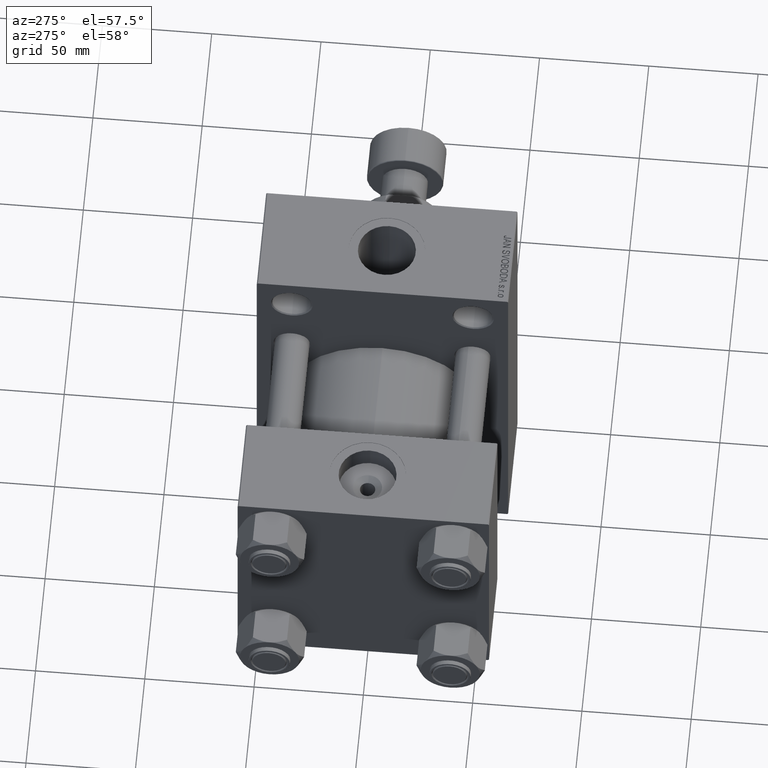
[diagram: clean part render]
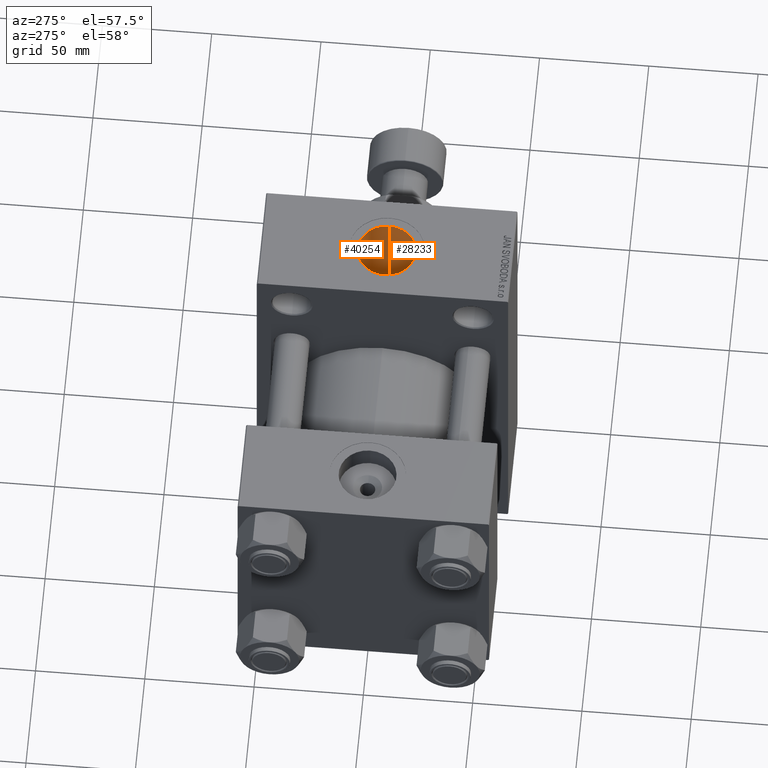
[diagram: same view with one multi-face feature highlighted, each face labeled with its STEP entity id]
A machine part, auxiliary view. The highlighted faces form ONE feature: a constant-radius fillet chain: 2 tangent blend faces with common blend radius 13.22 mm. The faces share edges in the B-rep.
Their STEP definitions:
[1] entity #40254 (Cylinder):
#223 = ORIENTED_EDGE ( 'NONE', *, *, #40604, .F. ) ;
#615 = DIRECTION ( 'NONE',  ( 0.000000000000000000, 0.000000000000000000, -1.000000000000000000 ) ) ;
#954 = CARTESIAN_POINT ( 'NONE',  ( 109.7799999999999869, 3.735152335644797090E-15, 30.50000000000000000 ) ) ;
#1221 = VERTEX_POINT ( 'NONE', #22993 ) ;
#1225 = EDGE_LOOP ( 'NONE', ( #223, #19825, #43987, #13079, #8320, #28081 ) ) ;
#1589 = CARTESIAN_POINT ( 'NONE',  ( 109.7799999999999869, -1.086087741481131350E-14, 89.79999999999998295 ) ) ;
#1674 = CARTESIAN_POINT ( 'NONE',  ( 123.7777193278499652, 13.20633922326214638, 27.49264203546941232 ) ) ;
#1803 = CARTESIAN_POINT ( 'NONE',  ( 135.8962416663181898, 3.003490287928880953, 35.88217189229079906 ) ) ;
#2040 = AXIS2_PLACEMENT_3D ( 'NONE', #14622, #7086, #29210 ) ;
#2893 = EDGE_CURVE ( 'NONE', #24180, #39770, #23407, .T. ) ;
#3854 = CARTESIAN_POINT ( 'NONE',  ( 109.7799999999999869, 3.735152335644797090E-15, 30.50000000000000000 ) ) ;
#3912 = CYLINDRICAL_SURFACE ( 'NONE', #2040, 13.22000000000000952 ) ;
#4713 = CARTESIAN_POINT ( 'NONE',  ( 125.7400000000000233, 12.93293470176046078, 33.59671412504503252 ) ) ;
#4833 = CARTESIAN_POINT ( 'NONE',  ( 109.8074965746004779, 0.9872482238805229127, 30.48805017778671100 ) ) ;
#4969 = CARTESIAN_POINT ( 'NONE',  ( 126.4867003901545246, 12.77473711426743108, 33.65761171941715446 ) ) ;
#5319 = CARTESIAN_POINT ( 'NONE',  ( 125.7400000000000233, 12.93293470176046078, 27.62225914004863014 ) ) ;
#5337 = DIRECTION ( 'NONE',  ( 1.000000000000000000, 0.000000000000000000, 0.000000000000000000 ) ) ;
#5454 = CARTESIAN_POINT ( 'NONE',  ( 136.2199999999999989, 0.3819698288429408950, 36.00000000000000000 ) ) ;
#7086 = DIRECTION ( 'NONE',  ( 0.000000000000000000, 0.000000000000000000, -1.000000000000000000 ) ) ;
#7505 = DIRECTION ( 'NONE',  ( 0.000000000000000000, 0.000000000000000000, -1.000000000000000000 ) ) ;
#7562 = FACE_OUTER_BOUND ( 'NONE', #1225, .T. ) ;
#8320 = ORIENTED_EDGE ( 'NONE', *, *, #2893, .F. ) ;
#8391 = CARTESIAN_POINT ( 'NONE',  ( 136.1379817546421407, 1.518265865167177875, 35.96994912351961204 ) ) ;
#8501 = CARTESIAN_POINT ( 'NONE',  ( 118.8969839307878829, 12.60537237624625462, 27.77446624569848410 ) ) ;
#8622 = CARTESIAN_POINT ( 'NONE',  ( 127.2060821151613510, 12.55531642788235125, 33.74093801992368924 ) ) ;
#8722 = CARTESIAN_POINT ( 'NONE',  ( 116.2405905081905644, 11.37158902866329768, 28.30223178644141058 ) ) ;
#8846 = EDGE_CURVE ( 'NONE', #33221, #39770, #47764, .T. ) ;
#8854 = CARTESIAN_POINT ( 'NONE',  ( 136.2033327349465992, 0.7640029534827996738, 35.99386990409604437 ) ) ;
#12150 = CARTESIAN_POINT ( 'NONE',  ( 114.2896176093950373, 9.956384615881498590, 28.83096279477899770 ) ) ;
#12282 = CARTESIAN_POINT ( 'NONE',  ( 136.0893087182808188, 1.892035420910296750, 35.95216273564660980 ) ) ;
#12615 = CARTESIAN_POINT ( 'NONE',  ( 110.0034013176459666, 2.469744289827827011, 30.40367189608674536 ) ) ;
#12749 = CARTESIAN_POINT ( 'NONE',  ( 132.7718099334104522, 8.911727539146795607, 34.88062444271565710 ) ) ;
#13001 = CARTESIAN_POINT ( 'NONE',  ( 132.2544909056830420, 9.447833359205608517, 34.73924717178599764 ) ) ;
#13079 = ORIENTED_EDGE ( 'NONE', *, *, #8846, .T. ) ;
#14348 = CIRCLE ( 'NONE', #43922, 13.22000000000000952 ) ;
#14436 = CARTESIAN_POINT ( 'NONE',  ( 136.2199999999999989, -9.241894346338509984E-15, 89.79999999999998295 ) ) ;
#14622 = CARTESIAN_POINT ( 'NONE',  ( 123.0000000000000000, -1.086087741481131350E-14, 112.7999999999999829 ) ) ;
#15793 = CARTESIAN_POINT ( 'NONE',  ( 112.9260598174467134, 8.574286465039138605, 29.27263374885120228 ) ) ;
#15890 = DIRECTION ( 'NONE',  ( 0.000000000000000000, 0.000000000000000000, -1.000000000000000000 ) ) ;
#16031 = CARTESIAN_POINT ( 'NONE',  ( 111.5110741800254459, 6.613878971456284006, 29.78798023624083058 ) ) ;
#16513 = CARTESIAN_POINT ( 'NONE',  ( 125.2536187678447703, 13.03598049970484496, 27.57401237756085521 ) ) ;
#16639 = CARTESIAN_POINT ( 'NONE',  ( 125.7400000000000233, 12.93293470176046078, 27.62225914004863014 ) ) ;
#19664 = CARTESIAN_POINT ( 'NONE',  ( 120.3256342958763838, 12.95594869095345558, 27.61177267963252646 ) ) ;
#19825 = ORIENTED_EDGE ( 'NONE', *, *, #36864, .F. ) ;
#19909 = CARTESIAN_POINT ( 'NONE',  ( 113.2493793498786516, 8.940352169284501826, 29.16250894268882021 ) ) ;
#22993 = CARTESIAN_POINT ( 'NONE',  ( 136.2199999999999989, 4.408731805096607676E-15, 36.00000000000000000 ) ) ;
#23253 = VECTOR ( 'NONE', #15890, 1000.000000000000000 ) ;
#23311 = CARTESIAN_POINT ( 'NONE',  ( 110.3594029954052047, 3.901785162874680690, 30.25300952143917144 ) ) ;
#23407 = LINE ( 'NONE', #23639, #23253 ) ;
#23639 = CARTESIAN_POINT ( 'NONE',  ( 125.7400000000000233, 12.93293470176046078, 112.7999999999999829 ) ) ;
#23788 = CARTESIAN_POINT ( 'NONE',  ( 117.9827127633823380, 12.27015841204415914, 27.92701712990832164 ) ) ;
#24180 = VERTEX_POINT ( 'NONE', #4713 ) ;
#24278 = CARTESIAN_POINT ( 'NONE',  ( 110.6830193899776589, 4.827070409900218628, 30.11922814116230285 ) ) ;
#24573 = VECTOR ( 'NONE', #7505, 1000.000000000000000 ) ;
#25001 = CARTESIAN_POINT ( 'NONE',  ( 109.7799999999999869, -1.086087741481131350E-14, 112.7999999999999829 ) ) ;
#26753 = CARTESIAN_POINT ( 'NONE',  ( 123.0000000000000000, -1.086087741481131350E-14, 89.79999999999998295 ) ) ;
#26869 = CARTESIAN_POINT ( 'NONE',  ( 128.5945103277782380, 12.00118958920801404, 33.94198458417640296 ) ) ;
#26979 = CARTESIAN_POINT ( 'NONE',  ( 115.0371891369870241, 10.56380609296691375, 28.61398279029830860 ) ) ;
#27106 = CARTESIAN_POINT ( 'NONE',  ( 134.8678405391319188, 5.836387716606536102, 35.52542343625399468 ) ) ;
#27334 = CARTESIAN_POINT ( 'NONE',  ( 134.6983450057127527, 6.168928695871315426, 35.46904263421720316 ) ) ;
#27579 = CARTESIAN_POINT ( 'NONE',  ( 131.1482271659914716, 10.43671964436603261, 34.45770319535727566 ) ) ;
#28081 = ORIENTED_EDGE ( 'NONE', *, *, #36277, .T. ) ;
#29210 = DIRECTION ( 'NONE',  ( -1.000000000000000000, 0.000000000000000000, 0.000000000000000000 ) ) ;
#29468 = VERTEX_POINT ( 'NONE', #14436 ) ;
#30749 = CARTESIAN_POINT ( 'NONE',  ( 135.3223465543050565, 4.803346231252598741, 35.67993160896550364 ) ) ;
#30859 = CARTESIAN_POINT ( 'NONE',  ( 115.4271501200176715, 10.84687044312922666, 28.50745100355763029 ) ) ;
#31101 = CARTESIAN_POINT ( 'NONE',  ( 122.2979727381281947, 13.21057355757992013, 27.49055875873991184 ) ) ;
#31335 = CARTESIAN_POINT ( 'NONE',  ( 116.6661582615323596, 11.61426874580967805, 28.20310319464547177 ) ) ;
#31588 = CARTESIAN_POINT ( 'NONE',  ( 109.7799999999999443, 0.4930897905089558497, 30.49999999999999645 ) ) ;
#33042 = LINE ( 'NONE', #37176, #24573 ) ;
#33221 = VERTEX_POINT ( 'NONE', #3854 ) ;
#34275 = CARTESIAN_POINT ( 'NONE',  ( 112.0260244560768541, 7.434870375886672100, 29.59044782374041205 ) ) ;
#34513 = CARTESIAN_POINT ( 'NONE',  ( 123.2851615108020837, 13.22613998524883350, 27.48307289366608330 ) ) ;
#34527 = DIRECTION ( 'NONE',  ( -0.000000000000000000, -0.000000000000000000, -1.000000000000000000 ) ) ;
#34754 = CARTESIAN_POINT ( 'NONE',  ( 109.9192796940201902, 1.977766912824124645, 30.43984725220107990 ) ) ;
#35189 = VERTEX_POINT ( 'NONE', #1589 ) ;
#36277 = EDGE_CURVE ( 'NONE', #24180, #1221, #45938, .T. ) ;
#36864 = EDGE_CURVE ( 'NONE', #35189, #29468, #14348, .T. ) ;
#37176 = CARTESIAN_POINT ( 'NONE',  ( 136.2199999999999989, -9.241894346338509984E-15, 112.7999999999999829 ) ) ;
#38066 = CARTESIAN_POINT ( 'NONE',  ( 131.9855853527146223, 9.703877399782248503, 34.66842035655219689 ) ) ;
#38407 = CARTESIAN_POINT ( 'NONE',  ( 120.8119409645371434, 13.04724532387755076, 27.56854024737252828 ) ) ;
#38656 = CARTESIAN_POINT ( 'NONE',  ( 121.8033419719260593, 13.17521242515510593, 27.50761348180683541 ) ) ;
#38790 = CARTESIAN_POINT ( 'NONE',  ( 134.1498648550291648, 7.141648424859574185, 35.29067191690104721 ) ) ;
#39037 = CARTESIAN_POINT ( 'NONE',  ( 133.7312113704628018, 7.757108125705377333, 35.15943117783077554 ) ) ;
#39656 = EDGE_CURVE ( 'NONE', #35189, #33221, #47192, .T. ) ;
#39770 = VERTEX_POINT ( 'NONE', #16639 ) ;
#40254 = ADVANCED_FACE ( 'NONE', ( #7562 ), #3912, .F. ) ;
#40604 = EDGE_CURVE ( 'NONE', #29468, #1221, #33042, .T. ) ;
#41730 = CARTESIAN_POINT ( 'NONE',  ( 129.2649626807106813, 11.66558850424323701, 34.06003150599317308 ) ) ;
#41973 = CARTESIAN_POINT ( 'NONE',  ( 125.7400000000000233, 12.93293470176046078, 33.59671412504503252 ) ) ;
#42207 = CARTESIAN_POINT ( 'NONE',  ( 135.7051556392588054, 3.731388303156866648, 35.81334052950151658 ) ) ;
#42309 = CARTESIAN_POINT ( 'NONE',  ( 110.8710626762528761, 5.282033915368388399, 30.04254330308662091 ) ) ;
#42450 = CARTESIAN_POINT ( 'NONE',  ( 133.0210832298416506, 8.630590761265711564, 34.95143037011762033 ) ) ;
#42695 = CARTESIAN_POINT ( 'NONE',  ( 130.5493998682712800, 10.87852352895256836, 34.31951962323491045 ) ) ;
#43922 = AXIS2_PLACEMENT_3D ( 'NONE', #26753, #34527, #5337 ) ;
#43987 = ORIENTED_EDGE ( 'NONE', *, *, #39656, .T. ) ;
#44784 = VECTOR ( 'NONE', #615, 1000.000000000000000 ) ;
#45393 = CARTESIAN_POINT ( 'NONE',  ( 136.2199999999999989, 4.408731805096607676E-15, 36.00000000000000000 ) ) ;
#45497 = CARTESIAN_POINT ( 'NONE',  ( 113.9320074090820185, 9.632030437268106482, 28.94142039359464391 ) ) ;
#45876 = CARTESIAN_POINT ( 'NONE',  ( 135.1796393711020698, 5.154167772853369023, 35.63079688237382925 ) ) ;
#45938 = B_SPLINE_CURVE_WITH_KNOTS ( 'NONE', 3,
 ( #41973, #4969, #8622, #26869, #41730, #42695, #27579, #38066, #13001, #12749, #42450, #39037, #38790, #27334, #27106, #45876, #30749, #42207, #1803, #12282, #8391, #8854, #5454, #45393 ),
 .UNSPECIFIED., .F., .F.,
 ( 4, 2, 2, 2, 2, 2, 2, 2, 2, 2, 2, 4 ),
 ( 0.000000000000000000, 0.002262540966026029086, 0.004525081932052058172, 0.006787622898078087691, 0.007918893381091132375, 0.009050163864104177058, 0.01131270483013032194, 0.01244397531314339438, 0.01357524579615646508, 0.01583778676218263945, 0.01696905724519572403, 0.01810032772820881208 ),
 .UNSPECIFIED. ) ;
#45979 = CARTESIAN_POINT ( 'NONE',  ( 124.7607663062244825, 13.11151955524789336, 27.53798861069347126 ) ) ;
#46464 = CARTESIAN_POINT ( 'NONE',  ( 110.2233236804503917, 3.430416358514370323, 30.31031417239467274 ) ) ;
#47192 = LINE ( 'NONE', #25001, #44784 ) ;
#47764 = B_SPLINE_CURVE_WITH_KNOTS ( 'NONE', 3,
 ( #954, #31588, #4833, #34754, #12615, #46464, #23311, #24278, #42309, #16031, #34275, #15793, #19909, #45497, #12150, #26979, #30859, #8722, #31335, #23788, #8501, #19664, #38407, #38656, #31101, #34513, #1674, #45979, #16513, #5319 ),
 .UNSPECIFIED., .F., .F.,
 ( 4, 2, 2, 2, 2, 2, 2, 2, 2, 2, 2, 2, 2, 2, 4 ),
 ( 0.04185757538675117378, 0.04333653936425790887, 0.04481550334176463701, 0.04629446731927137210, 0.04777343129677810718, 0.05073135925179157735, 0.05221032322929830549, 0.05368928720680504058, 0.05516825118431176872, 0.05664721516181850380, 0.05960514311683196009, 0.06108410709433870905, 0.06256307107184545802, 0.06404203504935221392, 0.06552099902685895594 ),
 .UNSPECIFIED. ) ;
[2] entity #28233 (Cylinder):
#615 = DIRECTION ( 'NONE',  ( 0.000000000000000000, 0.000000000000000000, -1.000000000000000000 ) ) ;
#1221 = VERTEX_POINT ( 'NONE', #22993 ) ;
#1589 = CARTESIAN_POINT ( 'NONE',  ( 109.7799999999999869, -1.086087741481131350E-14, 89.79999999999998295 ) ) ;
#1737 = CARTESIAN_POINT ( 'NONE',  ( 125.7400000000000233, -12.93293470176048210, 33.59671412504501831 ) ) ;
#2326 = CARTESIAN_POINT ( 'NONE',  ( 130.2234778375481596, -11.07831175427973669, 34.25365854375355212 ) ) ;
#2565 = CARTESIAN_POINT ( 'NONE',  ( 126.4827252521804866, -12.75862568112615136, 33.66350131574141358 ) ) ;
#2709 = ORIENTED_EDGE ( 'NONE', *, *, #39656, .F. ) ;
#2757 = CARTESIAN_POINT ( 'NONE',  ( 110.6573864625835313, -4.834977203227586173, 30.12760479331262431 ) ) ;
#2806 = CARTESIAN_POINT ( 'NONE',  ( 131.4301524439943591, -10.19013505585470192, 34.52862519156882115 ) ) ;
#3048 = CARTESIAN_POINT ( 'NONE',  ( 127.2076088460675152, -12.53825874082048486, 33.74619856893890812 ) ) ;
#3854 = CARTESIAN_POINT ( 'NONE',  ( 109.7799999999999869, 3.735152335644797090E-15, 30.50000000000000000 ) ) ;
#4850 = AXIS2_PLACEMENT_3D ( 'NONE', #19373, #19597, #34444 ) ;
#4954 = CARTESIAN_POINT ( 'NONE',  ( 121.8037034507517262, -13.17510903343230488, 27.50766127672410732 ) ) ;
#5437 = CARTESIAN_POINT ( 'NONE',  ( 122.3058823230128809, -13.21107762266990804, 27.49031640659327991 ) ) ;
#6169 = CARTESIAN_POINT ( 'NONE',  ( 113.2203172874390020, -8.947551960444577901, 29.16865783815234892 ) ) ;
#6218 = CARTESIAN_POINT ( 'NONE',  ( 136.2199999999999704, -0.7632647160769617800, 36.00000000000000000 ) ) ;
#6941 = CARTESIAN_POINT ( 'NONE',  ( 131.1396695021039420, -10.42376285600498598, 34.45866136291867576 ) ) ;
#7175 = VECTOR ( 'NONE', #33655, 1000.000000000000000 ) ;
#7505 = DIRECTION ( 'NONE',  ( 0.000000000000000000, 0.000000000000000000, -1.000000000000000000 ) ) ;
#7946 = EDGE_LOOP ( 'NONE', ( #31478, #42308, #8993, #10954, #35397, #2709 ) ) ;
#8343 = LINE ( 'NONE', #34599, #7175 ) ;
#8359 = EDGE_CURVE ( 'NONE', #23744, #33221, #37405, .T. ) ;
#8993 = ORIENTED_EDGE ( 'NONE', *, *, #27483, .T. ) ;
#10058 = CARTESIAN_POINT ( 'NONE',  ( 109.8904211679684124, -1.722922135315093639, 30.45229114395320380 ) ) ;
#10345 = CARTESIAN_POINT ( 'NONE',  ( 134.3340033522584065, -6.815280192024312456, 35.35054759480855324 ) ) ;
#10778 = CARTESIAN_POINT ( 'NONE',  ( 112.3230183722454854, -7.810479071823817065, 29.48561069758633479 ) ) ;
#10954 = ORIENTED_EDGE ( 'NONE', *, *, #26776, .F. ) ;
#11369 = CYLINDRICAL_SURFACE ( 'NONE', #4850, 13.22000000000000952 ) ;
#12501 = CARTESIAN_POINT ( 'NONE',  ( 118.9108056136109610, -12.58132053668447803, 27.78479549450234742 ) ) ;
#12986 = CARTESIAN_POINT ( 'NONE',  ( 117.5318111534776619, -12.04594987798922112, 28.02143598411491610 ) ) ;
#13758 = CARTESIAN_POINT ( 'NONE',  ( 132.2683236211794053, -9.456123306897668002, 34.73961675537525196 ) ) ;
#13951 = CARTESIAN_POINT ( 'NONE',  ( 109.7799999999999585, -0.4934884814115288454, 30.49999999999999289 ) ) ;
#14436 = CARTESIAN_POINT ( 'NONE',  ( 136.2199999999999989, -9.241894346338509984E-15, 89.79999999999998295 ) ) ;
#14482 = CARTESIAN_POINT ( 'NONE',  ( 135.9615557504129981, -2.628343228240500817, 35.90584824798533958 ) ) ;
#15990 = AXIS2_PLACEMENT_3D ( 'NONE', #39170, #34783, #16540 ) ;
#16254 = EDGE_CURVE ( 'NONE', #29468, #35189, #22989, .T. ) ;
#16540 = DIRECTION ( 'NONE',  ( 1.000000000000000000, 0.000000000000000000, 0.000000000000000000 ) ) ;
#17167 = CARTESIAN_POINT ( 'NONE',  ( 128.6039743856111386, -11.99680468088062746, 33.94354112271072665 ) ) ;
#17596 = CARTESIAN_POINT ( 'NONE',  ( 110.0571384771800325, -2.704130925345939573, 30.38086169036233741 ) ) ;
#19373 = CARTESIAN_POINT ( 'NONE',  ( 123.0000000000000000, -1.086087741481131350E-14, 112.7999999999999829 ) ) ;
#19597 = DIRECTION ( 'NONE',  ( 0.000000000000000000, 0.000000000000000000, -1.000000000000000000 ) ) ;
#19785 = CARTESIAN_POINT ( 'NONE',  ( 119.3806226936401345, -12.72437874985379835, 27.71924882183591166 ) ) ;
#20513 = CARTESIAN_POINT ( 'NONE',  ( 120.8194127222318883, -13.04835861710616030, 27.56801161413727996 ) ) ;
#21528 = CARTESIAN_POINT ( 'NONE',  ( 132.7829955645538291, -8.922873027715086280, 34.88174282732674669 ) ) ;
#21718 = CARTESIAN_POINT ( 'NONE',  ( 109.9249887712034308, -1.968324950537291285, 30.43741289426054664 ) ) ;
#21767 = CARTESIAN_POINT ( 'NONE',  ( 130.5356348427428657, -10.86845247487192267, 34.32099817610180281 ) ) ;
#22989 = CIRCLE ( 'NONE', #15990, 13.22000000000000952 ) ;
#22993 = CARTESIAN_POINT ( 'NONE',  ( 136.2199999999999989, 4.408731805096607676E-15, 36.00000000000000000 ) ) ;
#23744 = VERTEX_POINT ( 'NONE', #25279 ) ;
#24573 = VECTOR ( 'NONE', #7505, 1000.000000000000000 ) ;
#24688 = CARTESIAN_POINT ( 'NONE',  ( 136.1544019816762443, -1.515576091947734572, 35.97576316411753794 ) ) ;
#24927 = CARTESIAN_POINT ( 'NONE',  ( 135.6891278366015854, -3.727918262643096892, 35.80834393886973288 ) ) ;
#25001 = CARTESIAN_POINT ( 'NONE',  ( 109.7799999999999869, -1.086087741481131350E-14, 112.7999999999999829 ) ) ;
#25279 = CARTESIAN_POINT ( 'NONE',  ( 125.7400000000000233, -12.93293470176048388, 27.62225914004861949 ) ) ;
#25541 = B_SPLINE_CURVE_WITH_KNOTS ( 'NONE', 3,
 ( #47829, #6218, #24688, #14482, #47105, #24927, #29065, #40279, #39557, #10345, #43931, #29314, #44174, #21528, #13758, #2806, #6941, #21767, #2326, #47348, #17167, #35881, #3048, #2565, #36121, #43452 ),
 .UNSPECIFIED., .F., .F.,
 ( 4, 2, 2, 2, 2, 2, 2, 2, 2, 2, 2, 2, 4 ),
 ( 0.01810032772820881208, 0.02036086973656278318, 0.02149114074073977740, 0.02262141174491677162, 0.02488195375327072884, 0.02601222475744772999, 0.02714249576162473115, 0.02940303776997867796, 0.03053330877415562361, 0.03166357977833256926, 0.03392412178668646056, 0.03505439279086340620, 0.03618466379504035185 ),
 .UNSPECIFIED. ) ;
#26670 = FACE_OUTER_BOUND ( 'NONE', #7946, .T. ) ;
#26776 = EDGE_CURVE ( 'NONE', #23744, #39209, #8343, .T. ) ;
#27483 = EDGE_CURVE ( 'NONE', #1221, #39209, #25541, .T. ) ;
#28233 = ADVANCED_FACE ( 'NONE', ( #26670 ), #11369, .F. ) ;
#28780 = CARTESIAN_POINT ( 'NONE',  ( 110.3336605936850248, -3.913778405700234497, 30.26347032903657208 ) ) ;
#29065 = CARTESIAN_POINT ( 'NONE',  ( 135.5762609626179653, -4.092528755394252649, 35.76841822259746095 ) ) ;
#29258 = CARTESIAN_POINT ( 'NONE',  ( 112.0434615026330079, -7.413683856886506440, 29.58833678893006791 ) ) ;
#29314 = CARTESIAN_POINT ( 'NONE',  ( 133.7144084780975675, -7.753104972441712484, 35.15664683191295126 ) ) ;
#29468 = VERTEX_POINT ( 'NONE', #14436 ) ;
#31459 = CARTESIAN_POINT ( 'NONE',  ( 117.9856869291994741, -12.24205054737453580, 27.93593895886881029 ) ) ;
#31478 = ORIENTED_EDGE ( 'NONE', *, *, #16254, .F. ) ;
#31707 = CARTESIAN_POINT ( 'NONE',  ( 120.3349265898028193, -12.95789683450920293, 27.61085799903361604 ) ) ;
#32423 = CARTESIAN_POINT ( 'NONE',  ( 109.8075453442667282, -0.9859064391995585597, 30.48803002647009563 ) ) ;
#32904 = CARTESIAN_POINT ( 'NONE',  ( 115.4103075940779348, -10.86814745508435465, 28.50545567885846410 ) ) ;
#33042 = LINE ( 'NONE', #37176, #24573 ) ;
#33221 = VERTEX_POINT ( 'NONE', #3854 ) ;
#33655 = DIRECTION ( 'NONE',  ( -0.000000000000000000, -0.000000000000000000, 1.000000000000000000 ) ) ;
#34444 = DIRECTION ( 'NONE',  ( -1.000000000000000000, 0.000000000000000000, 0.000000000000000000 ) ) ;
#34599 = CARTESIAN_POINT ( 'NONE',  ( 125.7400000000000233, -12.93293470176048210, 112.7999999999999829 ) ) ;
#34783 = DIRECTION ( 'NONE',  ( -0.000000000000000000, -0.000000000000000000, -1.000000000000000000 ) ) ;
#35111 = CARTESIAN_POINT ( 'NONE',  ( 125.7400000000000233, -12.93293470176048388, 27.62225914004861949 ) ) ;
#35189 = VERTEX_POINT ( 'NONE', #1589 ) ;
#35354 = CARTESIAN_POINT ( 'NONE',  ( 116.2234386244904272, -11.39284893347531380, 28.29622104590159992 ) ) ;
#35397 = ORIENTED_EDGE ( 'NONE', *, *, #8359, .T. ) ;
#35881 = CARTESIAN_POINT ( 'NONE',  ( 127.5622627804116291, -12.41346128962092266, 33.79242230791055590 ) ) ;
#36067 = CARTESIAN_POINT ( 'NONE',  ( 111.2888049357341913, -6.152518877594249425, 29.87635194004260342 ) ) ;
#36121 = CARTESIAN_POINT ( 'NONE',  ( 126.1130436000879058, -12.85390086390296283, 33.62713791769439808 ) ) ;
#36557 = CARTESIAN_POINT ( 'NONE',  ( 109.7799999999999869, 3.735152335644797090E-15, 30.50000000000000000 ) ) ;
#36799 = CARTESIAN_POINT ( 'NONE',  ( 111.5247582497704428, -6.582345398711118456, 29.78430981770567954 ) ) ;
#37176 = CARTESIAN_POINT ( 'NONE',  ( 136.2199999999999989, -9.241894346338509984E-15, 112.7999999999999829 ) ) ;
#37405 = B_SPLINE_CURVE_WITH_KNOTS ( 'NONE', 3,
 ( #35111, #46090, #42430, #5437, #4954, #20513, #31707, #19785, #12501, #31459, #12986, #35354, #32904, #39507, #6169, #10778, #29258, #36799, #36067, #2757, #28780, #17596, #43403, #21718, #10058, #32423, #13951, #36557 ),
 .UNSPECIFIED., .F., .F.,
 ( 4, 2, 2, 2, 2, 2, 2, 2, 2, 2, 2, 2, 2, 4 ),
 ( 0.01817501853417217289, 0.02113533814074452719, 0.02261549794403070607, 0.02409565774731688495, 0.02557581755060306036, 0.02705597735388923925, 0.03001629696046160048, 0.03297661656703396171, 0.03445677637032015794, 0.03593693617360634723, 0.03889725578017874663, 0.03963733568182185169, 0.04037741558346495674, 0.04185757538675117378 ),
 .UNSPECIFIED. ) ;
#39170 = CARTESIAN_POINT ( 'NONE',  ( 123.0000000000000000, -1.086087741481131350E-14, 89.79999999999998295 ) ) ;
#39209 = VERTEX_POINT ( 'NONE', #1737 ) ;
#39507 = CARTESIAN_POINT ( 'NONE',  ( 113.8972371638812149, -9.636377362439825234, 28.94508358760565869 ) ) ;
#39557 = CARTESIAN_POINT ( 'NONE',  ( 134.8836492013383577, -5.839896060611124540, 35.52932100949514194 ) ) ;
#39656 = EDGE_CURVE ( 'NONE', #35189, #33221, #47192, .T. ) ;
#40279 = CARTESIAN_POINT ( 'NONE',  ( 135.1948937127548049, -5.159834589306234953, 35.63551938799943741 ) ) ;
#40604 = EDGE_CURVE ( 'NONE', #29468, #1221, #33042, .T. ) ;
#42308 = ORIENTED_EDGE ( 'NONE', *, *, #40604, .T. ) ;
#42430 = CARTESIAN_POINT ( 'NONE',  ( 123.7935798839906738, -13.23338642126744169, 27.47958799131999896 ) ) ;
#43403 = CARTESIAN_POINT ( 'NONE',  ( 110.0082494278150875, -2.458584717718191648, 30.40173955536769057 ) ) ;
#43452 = CARTESIAN_POINT ( 'NONE',  ( 125.7400000000000233, -12.93293470176048210, 33.59671412504501831 ) ) ;
#43931 = CARTESIAN_POINT ( 'NONE',  ( 134.1369082302658171, -7.132913908064998587, 35.28770313236166345 ) ) ;
#44174 = CARTESIAN_POINT ( 'NONE',  ( 133.4891427515922828, -8.055144359843703583, 35.08850325643999213 ) ) ;
#44784 = VECTOR ( 'NONE', #615, 1000.000000000000000 ) ;
#46090 = CARTESIAN_POINT ( 'NONE',  ( 124.7728848785530573, -13.13782983916528835, 27.52632580529386885 ) ) ;
#47105 = CARTESIAN_POINT ( 'NONE',  ( 135.8814408249626240, -2.996635129533365305, 35.87694312671834496 ) ) ;
#47192 = LINE ( 'NONE', #25001, #44784 ) ;
#47348 = CARTESIAN_POINT ( 'NONE',  ( 129.2689392453522430, -11.66300537238691959, 34.06086853725207675 ) ) ;
#47829 = CARTESIAN_POINT ( 'NONE',  ( 136.2199999999999989, 4.408731805096607676E-15, 36.00000000000000000 ) ) ;